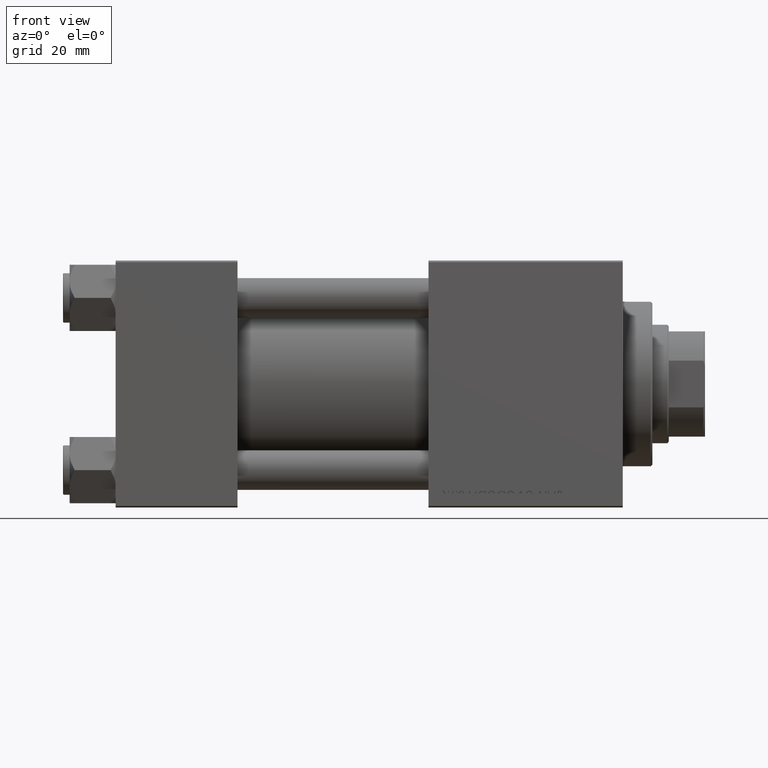
[diagram: clean part render]
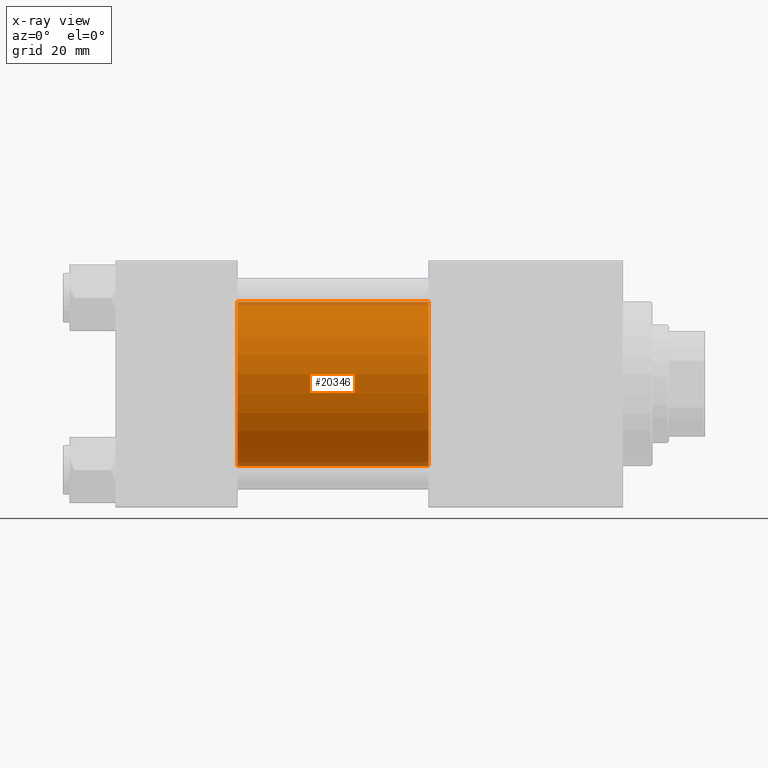
[diagram: x-ray — body ghosted, one internal face saturated and labeled with its STEP entity id]
A machine part, front view, then the same camera in x-ray: the body is ghosted and one INTERNAL B-rep face — a face not visible from any outside direction — is saturated and labeled: STEP entity #20346.
In plain terms, the highlighted cylindrical surface (partial cylindrical patch) has radius 25 mm, axis along (-1, -0, -0).
Its self-contained STEP definition (entity closure, byte-faithful):
#2032 = CARTESIAN_POINT ( 'NONE',  ( 37.00000000000000000, -2.602085213965210642E-15, 25.00000000000000000 ) ) ;
#2484 = ORIENTED_EDGE ( 'NONE', *, *, #20750, .T. ) ;
#4207 = CARTESIAN_POINT ( 'NONE',  ( 95.00000000000000000, -2.602085213965210642E-15, 25.00000000000000000 ) ) ;
#5668 = CARTESIAN_POINT ( 'NONE',  ( 95.00000000000000000, 4.595317839031718093E-16, -25.00000000000000000 ) ) ;
#7513 = CARTESIAN_POINT ( 'NONE',  ( 37.00000000000000000, -2.602085213965210642E-15, 0.000000000000000000 ) ) ;
#7764 = DIRECTION ( 'NONE',  ( 0.000000000000000000, 0.000000000000000000, -1.000000000000000000 ) ) ;
#8841 = CARTESIAN_POINT ( 'NONE',  ( 95.00000000000000000, 4.595317839031718093E-16, -25.00000000000000000 ) ) ;
#10140 = CARTESIAN_POINT ( 'NONE',  ( 95.00000000000000000, -2.602085213965210642E-15, 0.000000000000000000 ) ) ;
#11832 = LINE ( 'NONE', #4207, #12270 ) ;
#12270 = VECTOR ( 'NONE', #46830, 1000.000000000000000 ) ;
#12530 = CIRCLE ( 'NONE', #40862, 25.00000000000000000 ) ;
#13007 = VERTEX_POINT ( 'NONE', #2032 ) ;
#13530 = DIRECTION ( 'NONE',  ( -1.000000000000000000, -0.000000000000000000, -0.000000000000000000 ) ) ;
#15120 = DIRECTION ( 'NONE',  ( 1.000000000000000000, 0.000000000000000000, 0.000000000000000000 ) ) ;
#16759 = EDGE_CURVE ( 'NONE', #23530, #35851, #24670, .T. ) ;
#16814 = CIRCLE ( 'NONE', #47602, 25.00000000000000000 ) ;
#19920 = EDGE_LOOP ( 'NONE', ( #2484, #34283, #39736, #29635 ) ) ;
#20279 = VERTEX_POINT ( 'NONE', #37627 ) ;
#20346 = ADVANCED_FACE ( 'NONE', ( #29519 ), #29773, .F. ) ;
#20750 = EDGE_CURVE ( 'NONE', #20279, #23530, #12530, .T. ) ;
#22150 = CARTESIAN_POINT ( 'NONE',  ( 95.00000000000000000, -2.602085213965210642E-15, 0.000000000000000000 ) ) ;
#23530 = VERTEX_POINT ( 'NONE', #8841 ) ;
#24670 = LINE ( 'NONE', #5668, #25361 ) ;
#25361 = VECTOR ( 'NONE', #13530, 1000.000000000000000 ) ;
#29519 = FACE_OUTER_BOUND ( 'NONE', #19920, .T. ) ;
#29635 = ORIENTED_EDGE ( 'NONE', *, *, #40186, .F. ) ;
#29773 = CYLINDRICAL_SURFACE ( 'NONE', #40052, 25.00000000000000000 ) ;
#31208 = EDGE_CURVE ( 'NONE', #13007, #35851, #16814, .T. ) ;
#32952 = DIRECTION ( 'NONE',  ( 1.000000000000000000, 0.000000000000000000, 0.000000000000000000 ) ) ;
#33837 = DIRECTION ( 'NONE',  ( -1.000000000000000000, -0.000000000000000000, -0.000000000000000000 ) ) ;
#34283 = ORIENTED_EDGE ( 'NONE', *, *, #16759, .T. ) ;
#35851 = VERTEX_POINT ( 'NONE', #40401 ) ;
#36996 = DIRECTION ( 'NONE',  ( 0.000000000000000000, 0.000000000000000000, -1.000000000000000000 ) ) ;
#37627 = CARTESIAN_POINT ( 'NONE',  ( 95.00000000000000000, -2.602085213965210642E-15, 25.00000000000000000 ) ) ;
#39736 = ORIENTED_EDGE ( 'NONE', *, *, #31208, .F. ) ;
#40052 = AXIS2_PLACEMENT_3D ( 'NONE', #22150, #33837, #48570 ) ;
#40186 = EDGE_CURVE ( 'NONE', #20279, #13007, #11832, .T. ) ;
#40401 = CARTESIAN_POINT ( 'NONE',  ( 37.00000000000000000, 4.595317839031718093E-16, -25.00000000000000000 ) ) ;
#40862 = AXIS2_PLACEMENT_3D ( 'NONE', #10140, #32952, #36996 ) ;
#46830 = DIRECTION ( 'NONE',  ( -1.000000000000000000, -0.000000000000000000, -0.000000000000000000 ) ) ;
#47602 = AXIS2_PLACEMENT_3D ( 'NONE', #7513, #15120, #7764 ) ;
#48570 = DIRECTION ( 'NONE',  ( 0.000000000000000000, 0.000000000000000000, 1.000000000000000000 ) ) ;